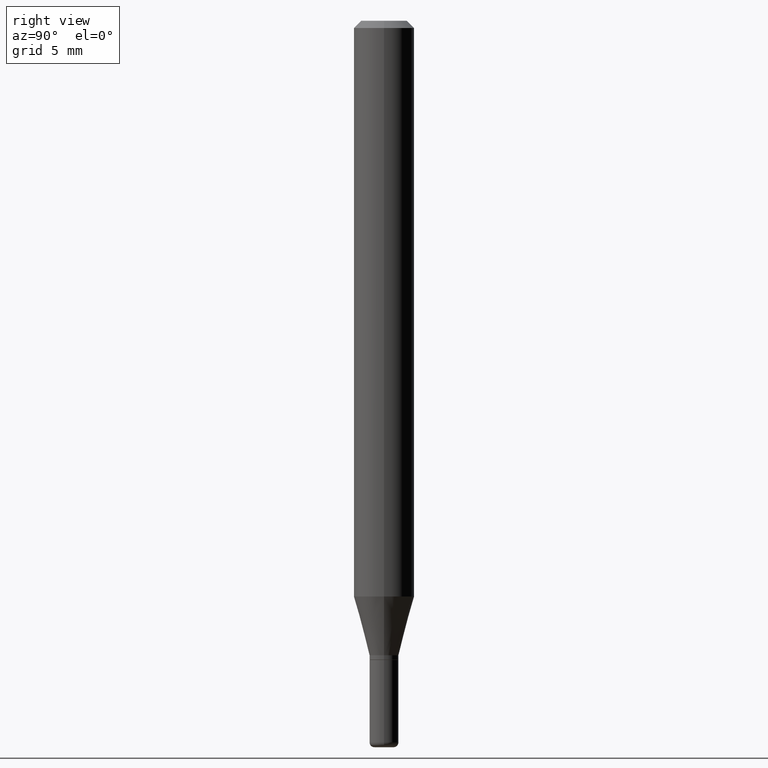
[diagram: clean part render]
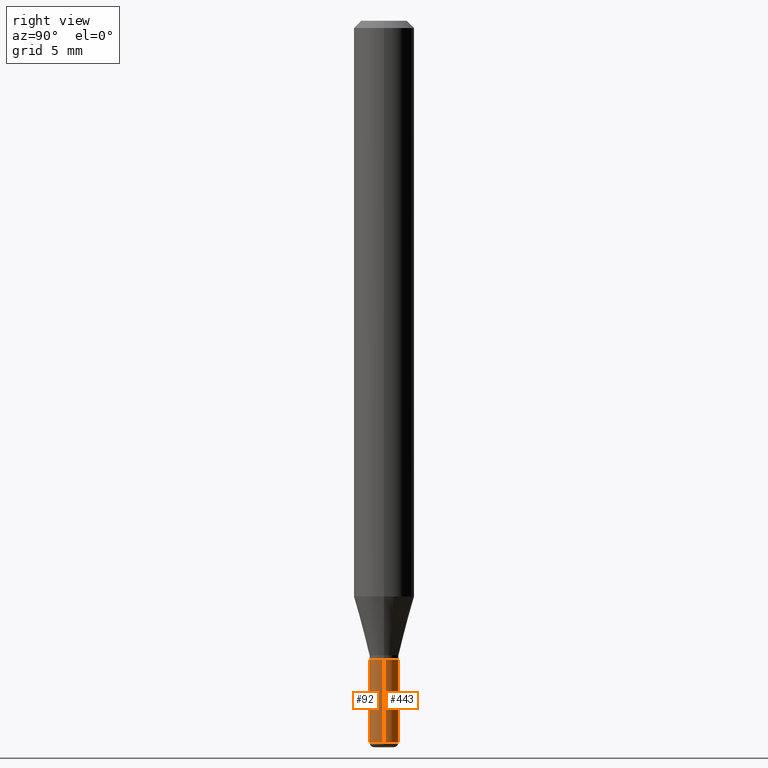
[diagram: same view with one multi-face feature highlighted, each face labeled with its STEP entity id]
A machine part, right view. The highlighted faces form ONE feature: a constant-radius fillet chain: 2 tangent blend faces with common blend radius 0.762 mm. The faces share edges in the B-rep.
Their STEP definitions:
[1] entity #443 (Cylinder):
#9 = EDGE_CURVE ( 'NONE', #190, #275, #513, .T. ) ;
#35 = VERTEX_POINT ( 'NONE', #86 ) ;
#57 = CARTESIAN_POINT ( 'NONE',  ( -0.02999999999999997113, 2.131628207280298507E-16, -1.475680527076470305E-30 ) ) ;
#71 = ORIENTED_EDGE ( 'NONE', *, *, #194, .F. ) ;
#81 = CARTESIAN_POINT ( 'NONE',  ( 0.000000000000000000, 0.000000000000000000, 0.000000000000000000 ) ) ;
#85 = DIRECTION ( 'NONE',  ( 1.000000000000000000, -6.982962677686281699E-15, 0.000000000000000000 ) ) ;
#86 = CARTESIAN_POINT ( 'NONE',  ( -0.02999999999999994338, -4.692368460346590421E-15, -1.490000000000000213 ) ) ;
#105 = DIRECTION ( 'NONE',  ( -2.445468806185136597E-29, 3.491481338843145583E-15, 1.000000000000000000 ) ) ;
#133 = CIRCLE ( 'NONE', #318, 0.02999999999999999889 ) ;
#134 = FACE_OUTER_BOUND ( 'NONE', #223, .T. ) ;
#157 = CARTESIAN_POINT ( 'NONE',  ( 0.02999999999999997113, -2.094888803305877992E-16, 1.462853032738779302E-30 ) ) ;
#161 = EDGE_CURVE ( 'NONE', #35, #454, #180, .T. ) ;
#169 = DIRECTION ( 'NONE',  ( 1.000000000000000000, -6.982962677686266711E-15, 4.876176775795935793E-29 ) ) ;
#180 = LINE ( 'NONE', #57, #315 ) ;
#190 = VERTEX_POINT ( 'NONE', #455 ) ;
#194 = EDGE_CURVE ( 'NONE', #275, #454, #133, .T. ) ;
#211 = CYLINDRICAL_SURFACE ( 'NONE', #254, 0.02999999999999997113 ) ;
#223 = EDGE_LOOP ( 'NONE', ( #332, #306, #71, #401 ) ) ;
#249 = CIRCLE ( 'NONE', #279, 0.02999999999999994338 ) ;
#254 = AXIS2_PLACEMENT_3D ( 'NONE', #81, #284, #169 ) ;
#270 = DIRECTION ( 'NONE',  ( 1.000000000000000000, -6.982962677686268288E-15, 0.000000000000000000 ) ) ;
#275 = VERTEX_POINT ( 'NONE', #492 ) ;
#279 = AXIS2_PLACEMENT_3D ( 'NONE', #289, #478, #85 ) ;
#281 = CARTESIAN_POINT ( 'NONE',  ( -0.02999999999999999542, -4.692368460346590421E-15, -1.320000000000000062 ) ) ;
#284 = DIRECTION ( 'NONE',  ( -2.445468806185136597E-29, 3.491481338843145583E-15, 1.000000000000000000 ) ) ;
#289 = CARTESIAN_POINT ( 'NONE',  ( 3.643748521215853910E-29, -5.202307194876288105E-15, -1.490000000000000213 ) ) ;
#302 = DIRECTION ( 'NONE',  ( -2.445468806185136877E-29, 3.491481338843145188E-15, 1.000000000000000000 ) ) ;
#306 = ORIENTED_EDGE ( 'NONE', *, *, #161, .T. ) ;
#315 = VECTOR ( 'NONE', #302, 39.37007874015748143 ) ;
#318 = AXIS2_PLACEMENT_3D ( 'NONE', #502, #105, #270 ) ;
#332 = ORIENTED_EDGE ( 'NONE', *, *, #508, .T. ) ;
#401 = ORIENTED_EDGE ( 'NONE', *, *, #9, .F. ) ;
#421 = VECTOR ( 'NONE', #469, 39.37007874015748143 ) ;
#443 = ADVANCED_FACE ( 'NONE', ( #134 ), #211, .T. ) ;
#454 = VERTEX_POINT ( 'NONE', #281 ) ;
#455 = CARTESIAN_POINT ( 'NONE',  ( 0.02999999999999994338, -5.411796075206875633E-15, -1.490000000000000213 ) ) ;
#469 = DIRECTION ( 'NONE',  ( -2.445468806185136877E-29, 3.491481338843145188E-15, 1.000000000000000000 ) ) ;
#478 = DIRECTION ( 'NONE',  ( -2.445468806185136597E-29, 3.491481338843145583E-15, 1.000000000000000000 ) ) ;
#492 = CARTESIAN_POINT ( 'NONE',  ( 0.02999999999999999889, -4.818244247603540754E-15, -1.320000000000000062 ) ) ;
#502 = CARTESIAN_POINT ( 'NONE',  ( 3.228018824164380442E-29, -4.608755367272952437E-15, -1.320000000000000062 ) ) ;
#508 = EDGE_CURVE ( 'NONE', #190, #35, #249, .T. ) ;
#513 = LINE ( 'NONE', #157, #421 ) ;
[2] entity #92 (Cylinder):
#9 = EDGE_CURVE ( 'NONE', #190, #275, #513, .T. ) ;
#11 = AXIS2_PLACEMENT_3D ( 'NONE', #143, #45, #207 ) ;
#29 = DIRECTION ( 'NONE',  ( -2.445468806185136597E-29, 3.491481338843145583E-15, 1.000000000000000000 ) ) ;
#35 = VERTEX_POINT ( 'NONE', #86 ) ;
#39 = DIRECTION ( 'NONE',  ( -2.445468806185136597E-29, 3.491481338843145583E-15, 1.000000000000000000 ) ) ;
#45 = DIRECTION ( 'NONE',  ( -2.445468806185136597E-29, 3.491481338843145583E-15, 1.000000000000000000 ) ) ;
#57 = CARTESIAN_POINT ( 'NONE',  ( -0.02999999999999997113, 2.131628207280298507E-16, -1.475680527076470305E-30 ) ) ;
#67 = AXIS2_PLACEMENT_3D ( 'NONE', #417, #29, #265 ) ;
#73 = ORIENTED_EDGE ( 'NONE', *, *, #432, .T. ) ;
#86 = CARTESIAN_POINT ( 'NONE',  ( -0.02999999999999994338, -4.692368460346590421E-15, -1.490000000000000213 ) ) ;
#92 = ADVANCED_FACE ( 'NONE', ( #215 ), #486, .T. ) ;
#117 = ORIENTED_EDGE ( 'NONE', *, *, #9, .T. ) ;
#143 = CARTESIAN_POINT ( 'NONE',  ( 0.000000000000000000, 0.000000000000000000, 0.000000000000000000 ) ) ;
#157 = CARTESIAN_POINT ( 'NONE',  ( 0.02999999999999997113, -2.094888803305877992E-16, 1.462853032738779302E-30 ) ) ;
#161 = EDGE_CURVE ( 'NONE', #35, #454, #180, .T. ) ;
#178 = AXIS2_PLACEMENT_3D ( 'NONE', #283, #39, #436 ) ;
#180 = LINE ( 'NONE', #57, #315 ) ;
#190 = VERTEX_POINT ( 'NONE', #455 ) ;
#199 = CIRCLE ( 'NONE', #67, 0.02999999999999999889 ) ;
#203 = EDGE_CURVE ( 'NONE', #454, #275, #199, .T. ) ;
#207 = DIRECTION ( 'NONE',  ( 1.000000000000000000, -6.982962677686266711E-15, 4.876176775795935793E-29 ) ) ;
#215 = FACE_OUTER_BOUND ( 'NONE', #425, .T. ) ;
#264 = ORIENTED_EDGE ( 'NONE', *, *, #203, .F. ) ;
#265 = DIRECTION ( 'NONE',  ( 1.000000000000000000, -6.982962677686268288E-15, 0.000000000000000000 ) ) ;
#275 = VERTEX_POINT ( 'NONE', #492 ) ;
#281 = CARTESIAN_POINT ( 'NONE',  ( -0.02999999999999999542, -4.692368460346590421E-15, -1.320000000000000062 ) ) ;
#283 = CARTESIAN_POINT ( 'NONE',  ( 3.643748521215853910E-29, -5.202307194876288105E-15, -1.490000000000000213 ) ) ;
#302 = DIRECTION ( 'NONE',  ( -2.445468806185136877E-29, 3.491481338843145188E-15, 1.000000000000000000 ) ) ;
#304 = ORIENTED_EDGE ( 'NONE', *, *, #161, .F. ) ;
#315 = VECTOR ( 'NONE', #302, 39.37007874015748143 ) ;
#397 = CIRCLE ( 'NONE', #178, 0.02999999999999994338 ) ;
#417 = CARTESIAN_POINT ( 'NONE',  ( 3.228018824164380442E-29, -4.608755367272952437E-15, -1.320000000000000062 ) ) ;
#421 = VECTOR ( 'NONE', #469, 39.37007874015748143 ) ;
#425 = EDGE_LOOP ( 'NONE', ( #304, #73, #117, #264 ) ) ;
#432 = EDGE_CURVE ( 'NONE', #35, #190, #397, .T. ) ;
#436 = DIRECTION ( 'NONE',  ( 1.000000000000000000, -6.982962677686281699E-15, 0.000000000000000000 ) ) ;
#454 = VERTEX_POINT ( 'NONE', #281 ) ;
#455 = CARTESIAN_POINT ( 'NONE',  ( 0.02999999999999994338, -5.411796075206875633E-15, -1.490000000000000213 ) ) ;
#469 = DIRECTION ( 'NONE',  ( -2.445468806185136877E-29, 3.491481338843145188E-15, 1.000000000000000000 ) ) ;
#486 = CYLINDRICAL_SURFACE ( 'NONE', #11, 0.02999999999999997113 ) ;
#492 = CARTESIAN_POINT ( 'NONE',  ( 0.02999999999999999889, -4.818244247603540754E-15, -1.320000000000000062 ) ) ;
#513 = LINE ( 'NONE', #157, #421 ) ;